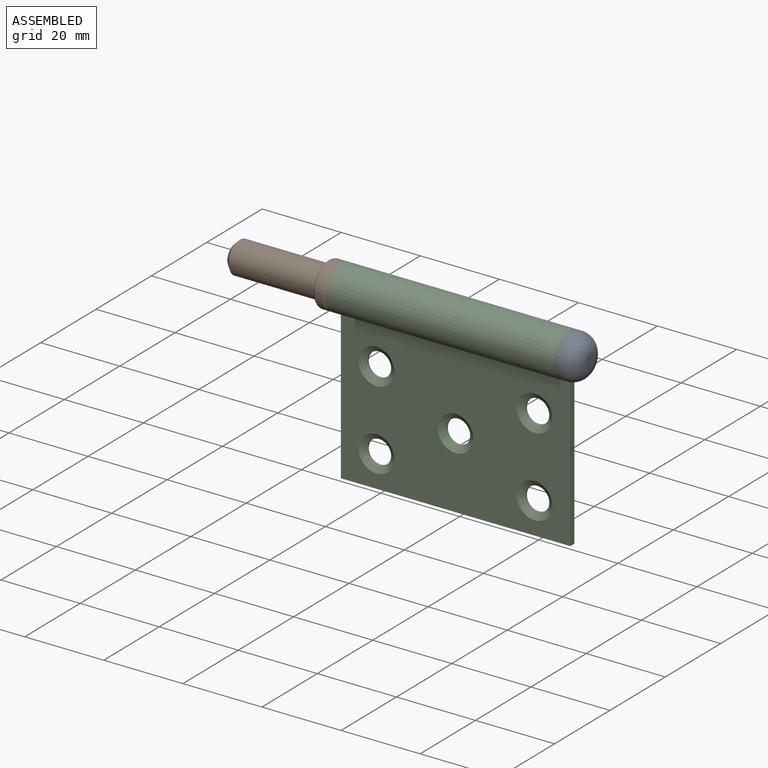
[diagram: assembled view]
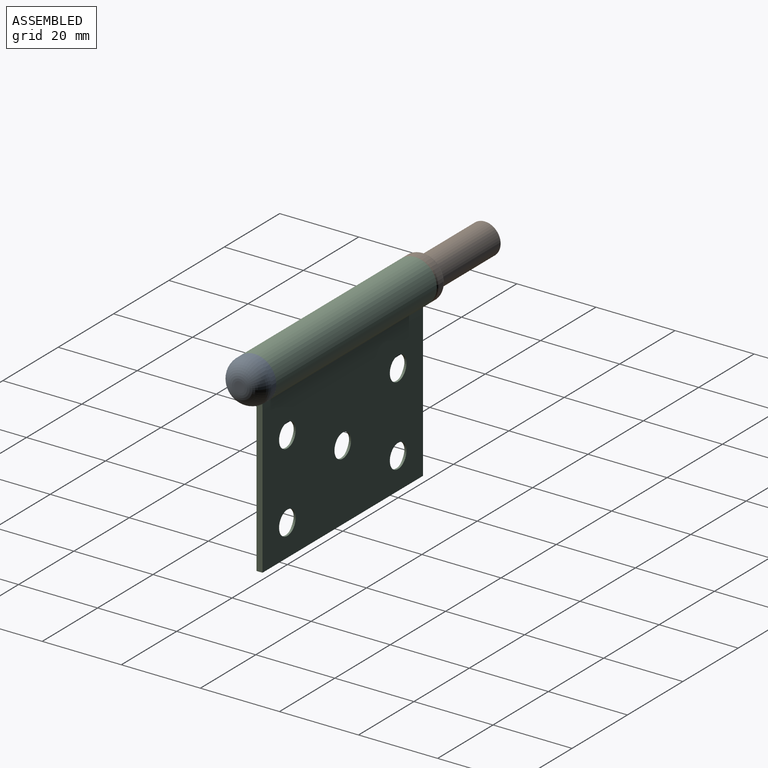
[diagram: assembled view, second angle]
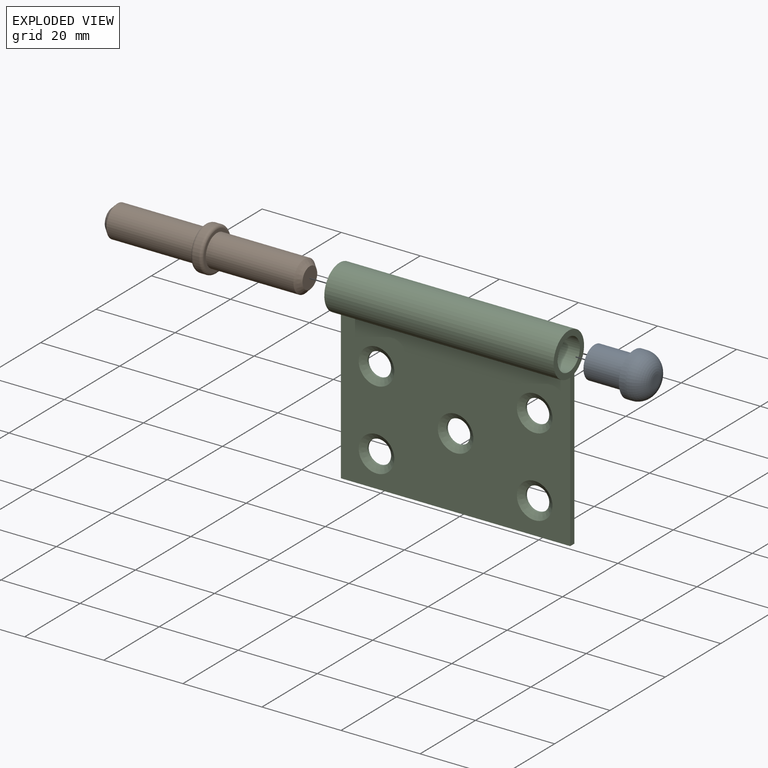
[diagram: exploded view]
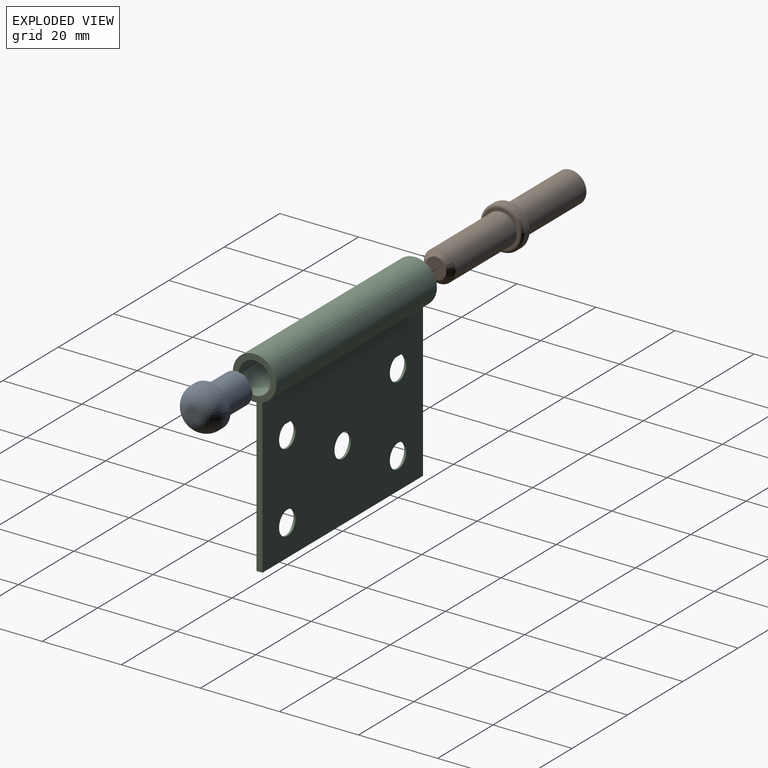
[diagram: exploded view, second angle]
ASSEMBLY  parts=3 mates=2
PART A: 6 faces, bbox 15.5x11x11 mm
  f0: cylinder r=5.5mm len=11mm, axis (-1,0,0), area 46.1mm2, adj f2,f5
  f1: plane 2.67x2.67mm, normal (1,0,0), area 5.6mm2, adj f5
  f2: plane 11x11mm, normal (-1,0,0), area 44.8mm2, adj f0,f3
  f3: cylinder r=4mm len=10mm, axis (1,0,0), area 251.3mm2, adj f2,f4
  f4: plane 8x8mm, normal (-1,0,0), area 50.3mm2, adj f3
  f5: torus R=1.33mm, axis (1,0,0), area 163.9mm2, adj f0,f1
PART B: 11 faces, bbox 50x11.9x11.9 mm
  f0: cylinder r=4mm len=22.17mm, axis (-1,0,0), area 557.1mm2, adj f3,f7
  f1: plane 5.33x5.33mm, normal (1,0,0), area 22.3mm2, adj f7
  f2: cylinder r=5.5mm len=11mm, axis (-1,0,0), area 51.8mm2, adj f9,f10
  f3: plane 9.5x9.5mm, normal (1,0,0), area 20.6mm2, adj f0,f10
  f4: plane 9.5x9.5mm, normal (-1,0,0), area 20.6mm2, adj f6,f9
  f5: plane 5.33x5.33mm, normal (-1,0,0), area 22.3mm2, adj f8
  f6: cylinder r=4mm len=22.17mm, axis (-1,0,0), area 557.1mm2, adj f4,f8
  f7: cone r=2.67mm half-angle=45deg, axis (-1,0,0), area 39.5mm2, adj f0,f1
  f8: cone r=4mm half-angle=45deg, axis (1,0,0), area 39.5mm2, adj f5,f6
  f9: torus R=4.75mm, axis (1,0,0), area 38.7mm2, adj f2,f4
  f10: torus R=4.75mm, axis (1,0,0), area 38.7mm2, adj f2,f3
PART C: 19 faces, bbox 58x11x49.5 mm
  f0: extruded ~58x1.52mm, area 88.3mm2, adj f1,f5,f7,f8
  f1: plane 58x37mm, normal (0,-1,0), area 1827.9mm2, adj f0,f2,f7,f8,f14,f15,f16,f17
  f2: plane 58x1.5mm, normal (0,0,-1), area 87mm2, adj f1,f3,f7,f8
  f3: plane 58x37mm, normal (0,1,0), area 2004.6mm2, adj f2,f4,f7,f8,f9,f10,f11,f12
  f4: extruded ~58x1.87mm, area 108.4mm2, adj f3,f5,f7,f8
  f5: cylinder r=5.5mm len=58mm, axis (-1,0,0), area 1915.4mm2, adj f0,f4,f7,f8
  f6: cylinder r=4mm len=58mm, axis (-1,0,0), area 1457.7mm2, adj f7,f8
  f7: plane 49.5x11mm, normal (1,0,0), area 102.8mm2, adj f0,f1,f2,f3,f4,f5,f6
  f8: plane 49.5x11mm, normal (-1,0,0), area 102.8mm2, adj f0,f1,f2,f3,f4,f5,f6
  f9: cylinder r=3mm len=6mm, axis (0,-1,0), area 9.4mm2, adj f3,f17
  f10: cylinder r=3mm len=6mm, axis (0,-1,0), area 9.4mm2, adj f3,f16
  f11: cylinder r=3mm len=6mm, axis (0,-1,0), area 9.4mm2, adj f3,f14
  f12: cylinder r=3mm len=6mm, axis (0,-1,0), area 9.4mm2, adj f3,f18
  f13: cylinder r=3mm len=6mm, axis (0,-1,0), area 9.4mm2, adj f3,f15
  f14: cone r=3mm half-angle=56.3deg, axis (0,-1,0), area 42.5mm2, adj f1,f11
  f15: cone r=3mm half-angle=56.3deg, axis (0,-1,0), area 42.5mm2, adj f1,f13
  f16: cone r=3mm half-angle=56.3deg, axis (0,-1,0), area 42.5mm2, adj f1,f10
  f17: cone r=3mm half-angle=56.3deg, axis (0,-1,0), area 42.5mm2, adj f1,f9
  f18: cone r=3mm half-angle=56.3deg, axis (0,-1,0), area 42.5mm2, adj f1,f12
PLACE A t=(29,0,0)mm
PLACE B t=(-30.5,0,0)mm
PLACE C at identity fixed
MATE fastened A.f0 <-> C.f5  axis (1,0,0) through (29,-2,184)mm
MATE fastened B.f0 <-> C.f5  axis (-1,0,0) through (-29,-2,184)mm
